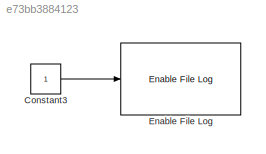
MODEL slx_e73bb3884123
KIND model
CONFIG AbsTol = auto
CONFIG EnableMultiTasking = off
CONFIG FixedStep = auto
CONFIG MaxStep = auto
CONFIG MinStep = auto
CONFIG RelTol = 1e-3
CONFIG SampleTimeConstraint = Unconstrained
CONFIG SolverName = FixedStepAuto
CONFIG StartTime = 0.0
CONFIG StopTime = inf
BLOCK [Constant] Constant3
  OutDataTypeStr = boolean
BLOCK [Reference] Enable File Log  REF=slrealtimeloglib/Enable File Log
  Ports = [1]
  SourceBlock = slrealtimeloglib/Enable File Log
  SourceProductBaseCode = XP
  SourceType = slrealtimeenablelogging
LINE Constant3:1 -> Enable File Log:1
